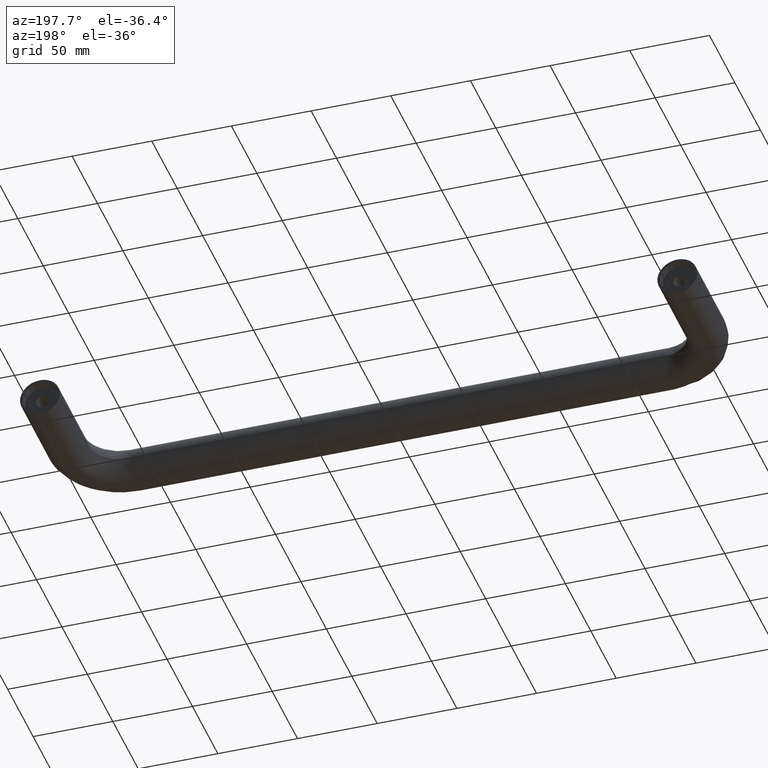
[diagram: clean part render]
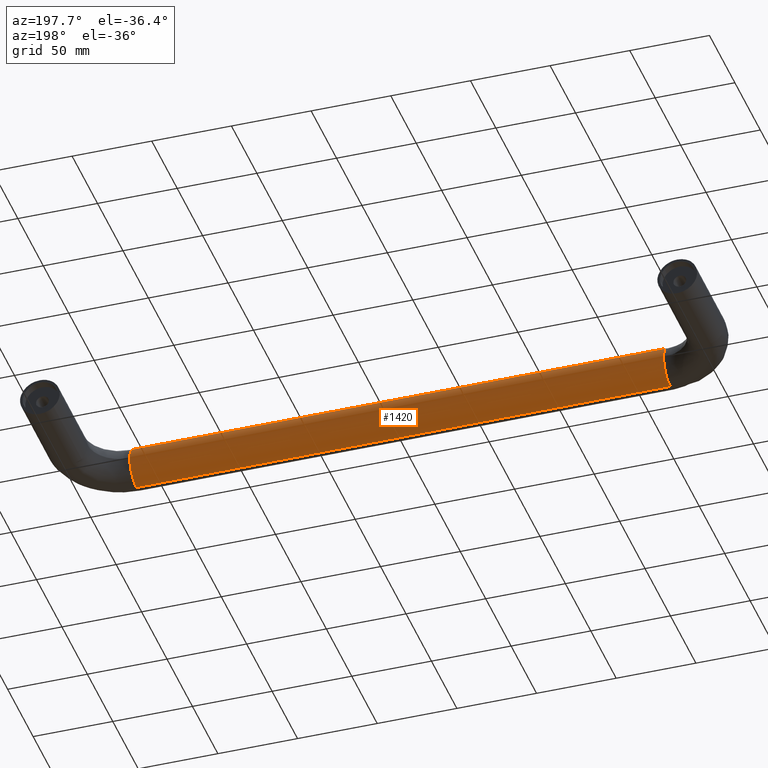
[diagram: same view with one face highlighted and labeled with its STEP entity id]
A machine part, auxiliary view. The second image highlights one B-rep face of the part: STEP entity #1420.
In plain terms, the highlighted face is a freeform B-spline surface patch.
Its self-contained STEP definition (entity closure, byte-faithful):
#1023=CARTESIAN_POINT('',(367.500000000067080,-75.0,-8.841173E-016));
#1024=VERTEX_POINT('',#1023);
#1038=CARTESIAN_POINT('',(367.500000000002220,-86.736891903897558,12.476684897586420));
#1039=VERTEX_POINT('',#1038);
#1040=CARTESIAN_POINT('',(367.500000000067080,-75.0,-8.841173E-016));
#1041=CARTESIAN_POINT('',(367.500000000035530,-75.000000000000028,11.758824559807501));
#1042=CARTESIAN_POINT('',(367.500000000002100,-86.736891903897558,12.476684897586491));
#1050=(BOUNDED_CURVE()B_SPLINE_CURVE(2,(#1040,#1041,#1042),.UNSPECIFIED.,.F.,.U.)B_SPLINE_CURVE_WITH_KNOTS((3,3),(0.666666666666667,0.985777258060780),.UNSPECIFIED.)CURVE()GEOMETRIC_REPRESENTATION_ITEM()RATIONAL_B_SPLINE_CURVE((1.0,0.719604015187342,0.976072001603296))REPRESENTATION_ITEM(''));
#1051=EDGE_CURVE('',#1024,#1039,#1050,.T.);
#1114=CARTESIAN_POINT('',(367.500000000516020,-88.263108096102457,-12.476684897586420));
#1115=VERTEX_POINT('',#1114);
#1129=CARTESIAN_POINT('',(367.500000000516080,-88.263108096102457,-12.476684897586493));
#1130=CARTESIAN_POINT('',(367.500000000503180,-87.881910219086038,-12.500000000000000));
#1131=CARTESIAN_POINT('',(367.500000000490220,-87.499999999999986,-12.500000000000000));
#1132=CARTESIAN_POINT('',(367.500000000067080,-75.0,-12.499999999999998));
#1133=CARTESIAN_POINT('',(367.500000000067080,-75.0,-8.841173E-016));
#1141=(BOUNDED_CURVE()B_SPLINE_CURVE(2,(#1129,#1130,#1131,#1132,#1133),.UNSPECIFIED.,.F.,.U.)B_SPLINE_CURVE_WITH_KNOTS((3,2,3),(0.319110591394112,0.333333333333333,0.666666666666667),.UNSPECIFIED.)CURVE()GEOMETRIC_REPRESENTATION_ITEM()RATIONAL_B_SPLINE_CURVE((0.976072001603295,0.987502765999206,1.0,0.707106781186547,1.0))REPRESENTATION_ITEM(''));
#1142=EDGE_CURVE('',#1115,#1024,#1141,.T.);
#1304=CARTESIAN_POINT('',(32.499999999963080,-86.736891903897558,12.476684897586420));
#1305=VERTEX_POINT('',#1304);
#1306=CARTESIAN_POINT('',(32.499999999963080,-86.736891903897558,12.476684897586420));
#1307=CARTESIAN_POINT('',(367.500000000002220,-86.736891903897558,12.476684897586420));
#1308=QUASI_UNIFORM_CURVE('',1,(#1306,#1307),.UNSPECIFIED.,.F.,.U.);
#1309=EDGE_CURVE('',#1305,#1039,#1308,.T.);
#1341=CARTESIAN_POINT('',(32.500017053687827,-88.263108096102428,-12.476684897586050));
#1342=VERTEX_POINT('',#1341);
#1356=CARTESIAN_POINT('',(32.500017053687827,-88.263108096102428,-12.476684897586050));
#1357=CARTESIAN_POINT('',(367.500000000516020,-88.263108096102457,-12.476684897586420));
#1358=QUASI_UNIFORM_CURVE('',1,(#1356,#1357),.UNSPECIFIED.,.F.,.U.);
#1359=EDGE_CURVE('',#1342,#1115,#1358,.T.);
#1366=CARTESIAN_POINT('',(24.124999998774101,-88.263106744185691,-12.476684980273340));
#1367=CARTESIAN_POINT('',(24.124999998774104,-75.786421763912358,-13.239791724459032));
#1368=CARTESIAN_POINT('',(24.124999998774101,-75.023315019726667,-0.763106744185696));
#1369=CARTESIAN_POINT('',(24.124999998774104,-74.260208275540990,11.713578236087638));
#1370=CARTESIAN_POINT('',(24.124999998774101,-86.736893255814309,12.476684980273340));
#1371=CARTESIAN_POINT('',(376.084375000966870,-88.263106744185691,-12.476684980273340));
#1372=CARTESIAN_POINT('',(376.084375000966870,-75.786421763912358,-13.239791724459032));
#1373=CARTESIAN_POINT('',(376.084375000966870,-75.023315019726667,-0.763106744185696));
#1374=CARTESIAN_POINT('',(376.084375000966870,-74.260208275540990,11.713578236087638));
#1375=CARTESIAN_POINT('',(376.084375000966870,-86.736893255814309,12.476684980273340));
#1383=(BOUNDED_SURFACE()B_SPLINE_SURFACE(2,1,((#1366,#1371),(#1367,#1372),(#1368,#1373),(#1369,#1374),(#1370,#1375)),.UNSPECIFIED.,.F.,.F.,.U.)B_SPLINE_SURFACE_WITH_KNOTS((3,2,3),(2,2),(0.0,20.710678118654759,41.421356237309517),(0.0,351.959375002192810),.UNSPECIFIED.)GEOMETRIC_REPRESENTATION_ITEM()RATIONAL_B_SPLINE_SURFACE(((1.0,1.0),(0.707106781186548,0.707106781186548),(1.0,1.0),(0.707106781186548,0.707106781186548),(1.0,1.0)))REPRESENTATION_ITEM('')SURFACE());
#1384=ORIENTED_EDGE('',*,*,#1051,.F.);
#1385=ORIENTED_EDGE('',*,*,#1142,.F.);
#1386=ORIENTED_EDGE('',*,*,#1359,.F.);
#1387=CARTESIAN_POINT('',(32.499999998826283,-75.0,-8.821372E-016));
#1388=VERTEX_POINT('',#1387);
#1389=CARTESIAN_POINT('',(32.500017053687834,-88.263108096102428,-12.476684897586050));
#1390=CARTESIAN_POINT('',(32.500016563509135,-87.881910219080311,-12.500000000000005));
#1391=CARTESIAN_POINT('',(32.500016072415690,-87.499999999988518,-12.500000000000000));
#1392=CARTESIAN_POINT('',(32.499999998826283,-75.0,-12.499999999999998));
#1393=CARTESIAN_POINT('',(32.499999998826283,-75.0,-8.821372E-016));
#1401=(BOUNDED_CURVE()B_SPLINE_CURVE(2,(#1389,#1390,#1391,#1392,#1393),.UNSPECIFIED.,.F.,.U.)B_SPLINE_CURVE_WITH_KNOTS((3,2,3),(0.319110591393889,0.333333333333333,0.666666666666667),.UNSPECIFIED.)CURVE()GEOMETRIC_REPRESENTATION_ITEM()RATIONAL_B_SPLINE_CURVE((0.976072001602936,0.987502765999009,1.0,0.707106781186547,1.0))REPRESENTATION_ITEM(''));
#1402=EDGE_CURVE('',#1342,#1388,#1401,.T.);
#1403=ORIENTED_EDGE('',*,*,#1402,.T.);
#1404=CARTESIAN_POINT('',(32.499999998826283,-75.0,-8.821372E-016));
#1405=CARTESIAN_POINT('',(32.499999999378339,-75.000000000000028,11.758824559807501));
#1406=CARTESIAN_POINT('',(32.499999999963066,-86.736891903897558,12.476684897586491));
#1414=(BOUNDED_CURVE()B_SPLINE_CURVE(2,(#1404,#1405,#1406),.UNSPECIFIED.,.F.,.U.)B_SPLINE_CURVE_WITH_KNOTS((3,3),(0.666666666666667,0.985777258060780),.UNSPECIFIED.)CURVE()GEOMETRIC_REPRESENTATION_ITEM()RATIONAL_B_SPLINE_CURVE((1.0,0.719604015187342,0.976072001603296))REPRESENTATION_ITEM(''));
#1415=EDGE_CURVE('',#1388,#1305,#1414,.T.);
#1416=ORIENTED_EDGE('',*,*,#1415,.T.);
#1417=ORIENTED_EDGE('',*,*,#1309,.T.);
#1418=EDGE_LOOP('',(#1384,#1385,#1386,#1403,#1416,#1417));
#1419=FACE_OUTER_BOUND('',#1418,.T.);
#1420=ADVANCED_FACE('',(#1419),#1383,.T.);